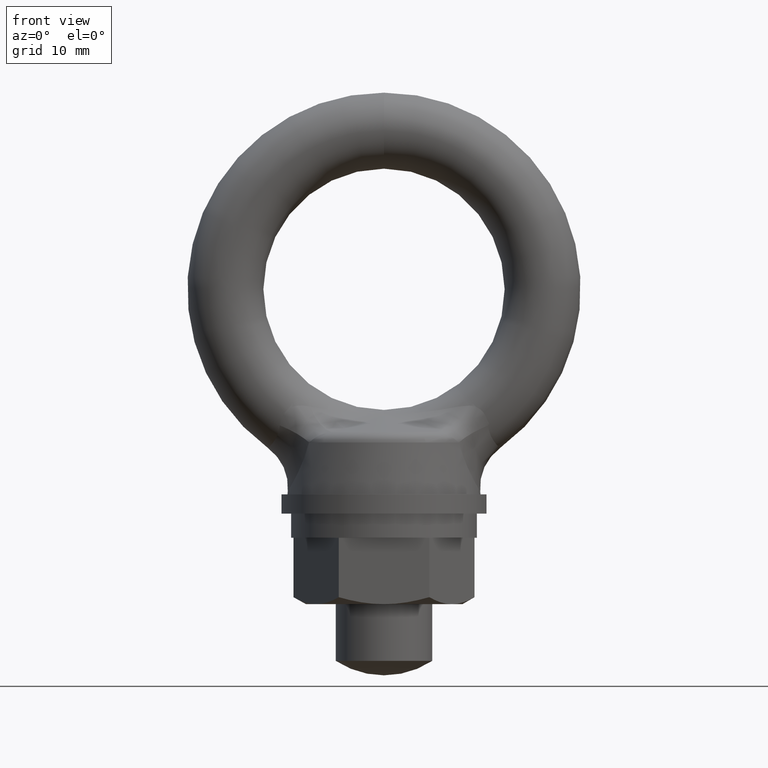
[diagram: clean part render]
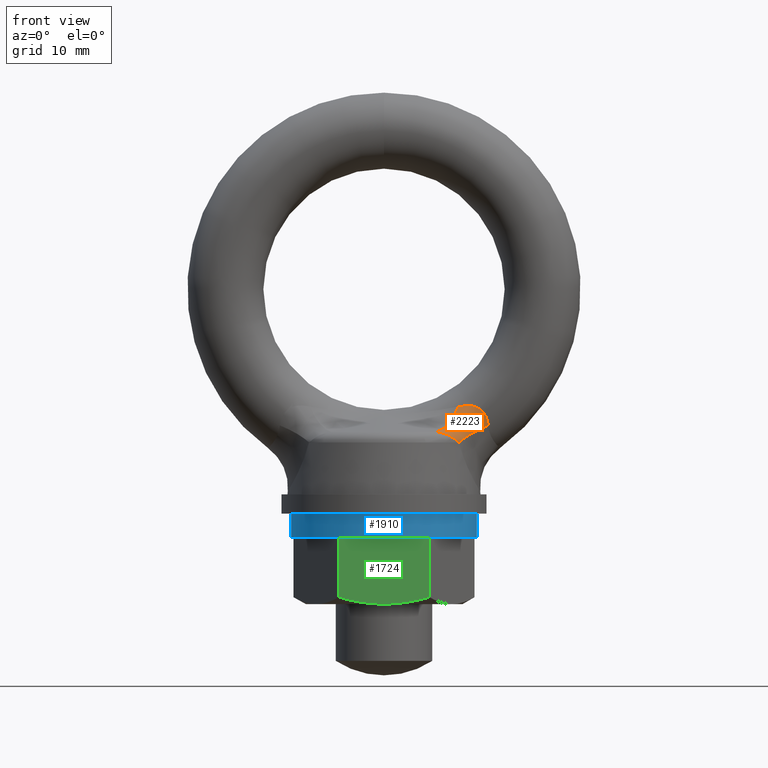
[diagram: same view with three faces highlighted in distinct colors, each labeled with its STEP entity id]
A machine part, front view with three faces highlighted in distinct colors.
Their STEP definitions:

[orange] entity #2223 — the highlighted face is a freeform B-spline surface patch.
#754 = CARTESIAN_POINT ( 'NONE',  ( 6.624465981007513300, -3.752363872475935800, -11.60461736599322100 ) ) ;
#755 = CARTESIAN_POINT ( 'NONE',  ( 6.850028407756562700, -3.604115059520046000, -11.43183169920158600 ) ) ;
#756 = CARTESIAN_POINT ( 'NONE',  ( 7.075590834505613100, -3.455866246564155600, -11.25904603240995000 ) ) ;
#757 = CARTESIAN_POINT ( 'NONE',  ( 7.316367057932363400, -3.341930627019032800, -11.07667421960101000 ) ) ;
#758 = CARTESIAN_POINT ( 'NONE',  ( 7.565463236599588200, -3.265567782564192900, -10.88993207257333800 ) ) ;
#759 = CARTESIAN_POINT ( 'NONE',  ( 7.814559415266814700, -3.189204938109352600, -10.70318992554566700 ) ) ;
#760 = CARTESIAN_POINT ( 'NONE',  ( 8.071947939920487900, -3.150423317274584400, -10.51209808149706500 ) ) ;
#761 = CARTESIAN_POINT ( 'NONE',  ( 8.330258053306016200, -3.150332459890817100, -10.32211941468063200 ) ) ;
#762 = CARTESIAN_POINT ( 'NONE',  ( 5.655982810312938400, -4.902921303073130200, -12.27286701834841800 ) ) ;
#763 = CARTESIAN_POINT ( 'NONE',  ( 5.799578757572135100, -4.634241746520705100, -12.16032117386944100 ) ) ;
#764 = DIRECTION ( 'NONE',  ( -0.9390797269214585800, 0.0000000000000000000, -0.3436993838881861100 ) ) ;
#765 = DIRECTION ( 'NONE',  ( 0.3252997756408585500, 0.3228035637214405900, -0.8888070179835132500 ) ) ;
#766 = CARTESIAN_POINT ( 'NONE',  ( 9.456419288156169500, -6.733135936884200300, -12.35134293307926100 ) ) ;
#767 = AXIS2_PLACEMENT_3D ( 'NONE', #766, #765, #764 ) ;
#768 = CIRCLE ( 'NONE', #767, 4.000000000000001800 ) ;
#769 = FACE_OUTER_BOUND ( 'NONE', #2220, .T. ) ;
#806 = CARTESIAN_POINT ( 'NONE',  ( 7.204398219756059000, -3.031339966494930300, -9.957411636842762100 ) ) ;
#807 = CARTESIAN_POINT ( 'NONE',  ( 7.405036247353464800, -3.000294370184554800, -9.681395243771278900 ) ) ;
#808 = CARTESIAN_POINT ( 'NONE',  ( 4.998548070981501100, -5.162955888432502900, -11.95721630242412000 ) ) ;
#809 = CARTESIAN_POINT ( 'NONE',  ( 5.157009970763178700, -4.867258216112873000, -11.88842652932523700 ) ) ;
#810 = CARTESIAN_POINT ( 'NONE',  ( 5.332633256828491300, -4.589326844221018200, -11.78294440711509900 ) ) ;
#811 = CARTESIAN_POINT ( 'NONE',  ( 5.519682183612121500, -4.338238951267684700, -11.64421480102921600 ) ) ;
#812 = CARTESIAN_POINT ( 'NONE',  ( 5.706731110395751600, -4.087151058314351100, -11.50548519494333500 ) ) ;
#813 = CARTESIAN_POINT ( 'NONE',  ( 5.905178632804928700, -3.862942950571206500, -11.33352816337640500 ) ) ;
#814 = CARTESIAN_POINT ( 'NONE',  ( 6.108543672686003800, -3.672937307980696600, -11.13395969529256600 ) ) ;
#815 = CARTESIAN_POINT ( 'NONE',  ( 6.311908712567079900, -3.482931665390186700, -10.93439122720872600 ) ) ;
#816 = CARTESIAN_POINT ( 'NONE',  ( 6.520161866462100200, -3.327155962880470800, -10.70724017858661100 ) ) ;
#817 = CARTESIAN_POINT ( 'NONE',  ( 6.726501895341865400, -3.210697980358865300, -10.45992523797714900 ) ) ;
#818 = CARTESIAN_POINT ( 'NONE',  ( 6.932841924221629700, -3.094239997837260300, -10.21261029736768600 ) ) ;
#819 = CARTESIAN_POINT ( 'NONE',  ( 7.137238995169668400, -3.017116576397377500, -9.945167225295177700 ) ) ;
#820 = CARTESIAN_POINT ( 'NONE',  ( 7.333017877920215500, -2.981846806581769400, -9.666330716938796600 ) ) ;
#821 = CARTESIAN_POINT ( 'NONE',  ( 4.955609647913139100, -5.173782885969664800, -11.94330041510120000 ) ) ;
#822 = CARTESIAN_POINT ( 'NONE',  ( 5.114219571410690600, -4.877956180036631100, -11.87721068945233900 ) ) ;
#823 = CARTESIAN_POINT ( 'NONE',  ( 5.289198206419209600, -4.599252052984997600, -11.77388903182385400 ) ) ;
#824 = CARTESIAN_POINT ( 'NONE',  ( 5.474842091869134300, -4.346754917540291500, -11.63670323081404200 ) ) ;
#825 = CARTESIAN_POINT ( 'NONE',  ( 5.660485977319059000, -4.094257782095585400, -11.49951742980422900 ) ) ;
#826 = CARTESIAN_POINT ( 'NONE',  ( 5.856768377025486100, -3.868004002558650200, -11.32848724272927000 ) ) ;
#827 = CARTESIAN_POINT ( 'NONE',  ( 6.057291429756314300, -3.675368362847356400, -11.12918743026583500 ) ) ;
#828 = CARTESIAN_POINT ( 'NONE',  ( 6.257814482487141600, -3.482732723136062500, -10.92988761780240000 ) ) ;
#829 = CARTESIAN_POINT ( 'NONE',  ( 6.462549309179634000, -3.323742966378438400, -10.70234688284379500 ) ) ;
#830 = CARTESIAN_POINT ( 'NONE',  ( 6.664822540176010600, -3.203581393191258900, -10.45398195785860400 ) ) ;
#831 = CARTESIAN_POINT ( 'NONE',  ( 6.867095771172387200, -3.083419820004079000, -10.20561703287341400 ) ) ;
#832 = CARTESIAN_POINT ( 'NONE',  ( 7.066878275351571800, -3.002103735896926900, -9.936463687047043100 ) ) ;
#833 = CARTESIAN_POINT ( 'NONE',  ( 7.257658104926845200, -2.962283653716770300, -9.655295023619155300 ) ) ;
#834 = CARTESIAN_POINT ( 'NONE',  ( 4.869732801776416800, -5.195436881043987000, -11.91546864045535900 ) ) ;
#835 = CARTESIAN_POINT ( 'NONE',  ( 5.028638772705713600, -4.899352107884143800, -11.85477900970653700 ) ) ;
#836 = CARTESIAN_POINT ( 'NONE',  ( 5.202328105600646100, -4.619102470512953800, -11.75577828124136400 ) ) ;
#837 = CARTESIAN_POINT ( 'NONE',  ( 5.385161908383159900, -4.363786850085504400, -11.62168009038369300 ) ) ;
#838 = CARTESIAN_POINT ( 'NONE',  ( 5.567995711165673700, -4.108471229658054100, -11.48758189952602200 ) ) ;
#839 = CARTESIAN_POINT ( 'NONE',  ( 5.759947865466602800, -3.878126106533538000, -11.31840540143500100 ) ) ;
#840 = CARTESIAN_POINT ( 'NONE',  ( 5.358841688301176900, -4.138447832193513400, -11.47743259672123800 ) ) ;
#841 = CARTESIAN_POINT ( 'NONE',  ( 5.538782123605322700, -3.899879913288550900, -11.31447956961868500 ) ) ;
#842 = CARTESIAN_POINT ( 'NONE',  ( 5.719123986665049800, -3.690730034607336000, -11.12019082425531200 ) ) ;
#843 = CARTESIAN_POINT ( 'NONE',  ( 5.899465849724776100, -3.481580155926120600, -10.92590207889193900 ) ) ;
#844 = CARTESIAN_POINT ( 'NONE',  ( 6.080184490503187400, -3.301876905130657600, -10.70030417163497600 ) ) ;
#845 = CARTESIAN_POINT ( 'NONE',  ( 6.255540070906475200, -3.157327870326158700, -10.45056235924144200 ) ) ;
#846 = CARTESIAN_POINT ( 'NONE',  ( 6.430895651309763900, -3.012778835521659400, -10.20082054684790800 ) ) ;
#847 = CARTESIAN_POINT ( 'NONE',  ( 6.600864202851334500, -2.903403774400436200, -9.926968965290369000 ) ) ;
#848 = CARTESIAN_POINT ( 'NONE',  ( 6.760047323005108100, -2.832676568459341100, -9.637705465178502400 ) ) ;
#849 = CARTESIAN_POINT ( 'NONE',  ( 6.125361473815208200, -3.837976307579706900, -11.37471549314044100 ) ) ;
#850 = CARTESIAN_POINT ( 'NONE',  ( 6.339870360658360400, -3.660426450901915100, -11.17707983443512800 ) ) ;
#851 = CARTESIAN_POINT ( 'NONE',  ( 6.554379247501511700, -3.482876594224123800, -10.97944417572981600 ) ) ;
#852 = CARTESIAN_POINT ( 'NONE',  ( 6.777164966763140600, -3.341541102563229800, -10.75830026909931900 ) ) ;
#853 = CARTESIAN_POINT ( 'NONE',  ( 7.000992843494215000, -3.241009661220058300, -10.52082947377408600 ) ) ;
#854 = CARTESIAN_POINT ( 'NONE',  ( 7.224820720225288500, -3.140478219876886800, -10.28335867844885400 ) ) ;
#855 = CARTESIAN_POINT ( 'NONE',  ( 7.449658760866690000, -3.080765198637089400, -10.02959493808255000 ) ) ;
#856 = CARTESIAN_POINT ( 'NONE',  ( 7.668205644015911200, -3.063809699792889000, -9.767778898356981500 ) ) ;
#857 = CARTESIAN_POINT ( 'NONE',  ( 5.165200978152407500, -5.115552554546954200, -12.01996472900264300 ) ) ;
#858 = CARTESIAN_POINT ( 'NONE',  ( 5.321440678384769600, -4.821979046278992900, -11.94001308698799100 ) ) ;
#859 = CARTESIAN_POINT ( 'NONE',  ( 5.497787286596619100, -4.548356336410940900, -11.82623330867404300 ) ) ;
#860 = CARTESIAN_POINT ( 'NONE',  ( 5.688495653842587700, -4.303598585733804600, -11.68233240891144400 ) ) ;
#861 = CARTESIAN_POINT ( 'NONE',  ( 5.879204021088556300, -4.058840835056669100, -11.53843150914884700 ) ) ;
#862 = CARTESIAN_POINT ( 'NONE',  ( 6.204904117960464500, -3.668041700831574200, -11.14839291386465800 ) ) ;
#863 = CARTESIAN_POINT ( 'NONE',  ( 6.413200139430291100, -3.483143833709272800, -10.94912098122977000 ) ) ;
#864 = CARTESIAN_POINT ( 'NONE',  ( 6.627758908753202500, -3.333425251716596500, -10.72379626564243400 ) ) ;
#865 = CARTESIAN_POINT ( 'NONE',  ( 6.841572325456430900, -3.223776190142251300, -10.47977851404199300 ) ) ;
#866 = CARTESIAN_POINT ( 'NONE',  ( 7.055385742159659300, -3.114127128567906000, -10.23576076244155300 ) ) ;
#867 = CARTESIAN_POINT ( 'NONE',  ( 7.268422884079559100, -3.044563445098833900, -9.973085265208579700 ) ) ;
#868 = CARTESIAN_POINT ( 'NONE',  ( 7.473725351427964900, -3.017357287755575400, -9.700331752186569300 ) ) ;
#869 = CARTESIAN_POINT ( 'NONE',  ( 5.040891874509992700, -5.151708974091416600, -11.97207298338659200 ) ) ;
#870 = CARTESIAN_POINT ( 'NONE',  ( 5.198970153241965000, -4.856315663507254000, -11.90052002858140400 ) ) ;
#871 = CARTESIAN_POINT ( 'NONE',  ( 5.374983301762362900, -4.579290858332626600, -11.79290714946718800 ) ) ;
#872 = CARTESIAN_POINT ( 'NONE',  ( 5.563178653510588500, -4.329688577946770400, -11.65275151536578900 ) ) ;
#873 = CARTESIAN_POINT ( 'NONE',  ( 5.751374005258814000, -4.080086297560913300, -11.51259588126439000 ) ) ;
#874 = CARTESIAN_POINT ( 'NONE',  ( 5.951724308742029700, -3.857942684934968300, -11.33991778742295900 ) ) ;
#875 = CARTESIAN_POINT ( 'NONE',  ( 6.157681452812904700, -3.670518049028028700, -11.14036090705760200 ) ) ;
#876 = CARTESIAN_POINT ( 'NONE',  ( 6.363638596883778800, -3.483093413121089600, -10.94080402669224500 ) ) ;
#877 = CARTESIAN_POINT ( 'NONE',  ( 6.575172757823893700, -3.330414893199675800, -10.71439725626597000 ) ) ;
#878 = CARTESIAN_POINT ( 'NONE',  ( 6.785370273034462100, -3.217472443079660000, -10.46854025865467200 ) ) ;
#879 = CARTESIAN_POINT ( 'NONE',  ( 6.995567788245030400, -3.104529992959644200, -10.22268326104337400 ) ) ;
#880 = CARTESIAN_POINT ( 'NONE',  ( 5.293319777635262300, -3.923561784140805000, -11.32196762688101200 ) ) ;
#881 = CARTESIAN_POINT ( 'NONE',  ( 5.456965508591952000, -3.702527886602736500, -11.13447296885970400 ) ) ;
#882 = CARTESIAN_POINT ( 'NONE',  ( 5.620611239548641600, -3.481493989064667400, -10.94697831083839600 ) ) ;
#883 = CARTESIAN_POINT ( 'NONE',  ( 5.782409418746744300, -3.286596163816140500, -10.72699870403193500 ) ) ;
#884 = CARTESIAN_POINT ( 'NONE',  ( 5.937378511518119200, -3.123846444854364800, -10.48131231831018300 ) ) ;
#885 = CARTESIAN_POINT ( 'NONE',  ( 6.092347604289495100, -2.961096725892589100, -10.23562593258843200 ) ) ;
#886 = CARTESIAN_POINT ( 'NONE',  ( 6.240467725390680600, -2.830516092761823800, -9.964264354189889900 ) ) ;
#887 = CARTESIAN_POINT ( 'NONE',  ( 6.377179456850029700, -2.736135694756229400, -9.675590147260678000 ) ) ;
#888 = CARTESIAN_POINT ( 'NONE',  ( 5.748087650809094600, -3.107128881078032200, -10.51453431734168300 ) ) ;
#889 = CARTESIAN_POINT ( 'NONE',  ( 5.891708131773502700, -2.934530078276012400, -10.27313614036470900 ) ) ;
#890 = CARTESIAN_POINT ( 'NONE',  ( 6.028013031313895100, -2.792548082051479900, -10.00552260398186500 ) ) ;
#891 = CARTESIAN_POINT ( 'NONE',  ( 6.152873488992953300, -2.685483719806822700, -9.719800085488369500 ) ) ;
#892 = CARTESIAN_POINT ( 'NONE',  ( 6.108660724279736200, -4.550018531910130700, -12.60205899224966000 ) ) ;
#893 = CARTESIAN_POINT ( 'NONE',  ( 5.101589738699382300, -5.137912545774836900, -11.98862065408465000 ) ) ;
#894 = CARTESIAN_POINT ( 'NONE',  ( 5.271149626895899900, -5.086419492993115900, -12.06098680549957100 ) ) ;
#895 = CARTESIAN_POINT ( 'NONE',  ( 5.584473315773737000, -4.943309559237218500, -12.22930568065968000 ) ) ;
#896 = CARTESIAN_POINT ( 'NONE',  ( 5.730020183650999000, -4.668960853296282700, -12.12089160500870100 ) ) ;
#897 = CARTESIAN_POINT ( 'NONE',  ( 5.900916107219056400, -4.417076854103284800, -11.98974781401026300 ) ) ;
#898 = CARTESIAN_POINT ( 'NONE',  ( 6.092008159097540300, -4.195251995136497500, -11.83982918199509100 ) ) ;
#899 = CARTESIAN_POINT ( 'NONE',  ( 6.283100210976023400, -3.973427136169709800, -11.68991054997991700 ) ) ;
#900 = CARTESIAN_POINT ( 'NONE',  ( 6.494364871604802600, -3.781688714104367600, -11.52123552980603800 ) ) ;
#901 = CARTESIAN_POINT ( 'NONE',  ( 6.719431694178823000, -3.625817627128619300, -11.33888997047053400 ) ) ;
#902 = CARTESIAN_POINT ( 'NONE',  ( 6.944498516752844400, -3.469946540152871100, -11.15654441113502800 ) ) ;
#903 = CARTESIAN_POINT ( 'NONE',  ( 7.183339797687208000, -3.349961968104670200, -10.96055075087944400 ) ) ;
#904 = CARTESIAN_POINT ( 'NONE',  ( 7.428753256471914300, -3.269481328214704200, -10.75681792308480700 ) ) ;
#905 = CARTESIAN_POINT ( 'NONE',  ( 7.674166715256620600, -3.189000688324737700, -10.55308509529017000 ) ) ;
#906 = CARTESIAN_POINT ( 'NONE',  ( 7.926122141368863600, -3.148033882707137900, -10.34163816545259200 ) ) ;
#907 = CARTESIAN_POINT ( 'NONE',  ( 8.177021486127467000, -3.147815874627812000, -10.12885147123172700 ) ) ;
#908 = CARTESIAN_POINT ( 'NONE',  ( 5.547925973596487200, -4.961878202509980800, -12.20836307296324300 ) ) ;
#909 = CARTESIAN_POINT ( 'NONE',  ( 5.694493526032338200, -4.685035224309397800, -12.10225251880596500 ) ) ;
#910 = CARTESIAN_POINT ( 'NONE',  ( 5.866112410113149000, -4.430622976769524400, -11.97228763147072600 ) ) ;
#911 = CARTESIAN_POINT ( 'NONE',  ( 6.057551201872100500, -4.206396657323095300, -11.82243010450945100 ) ) ;
#912 = CARTESIAN_POINT ( 'NONE',  ( 6.248989993631051100, -3.982170337876667100, -11.67257257754817300 ) ) ;
#913 = CARTESIAN_POINT ( 'NONE',  ( 6.460224605944219400, -3.788158159024890700, -11.50284126626593600 ) ) ;
#914 = B_SPLINE_SURFACE_WITH_KNOTS ( 'NONE', 3, 3, ( 
 ( #891, #890, #889, #888, #935, #934, #933, #932, #931, #930, #929, #928, #927 ),
 ( #887, #886, #885, #884, #883, #882, #881, #880, #1108, #1107, #1106, #1105, #1104 ),
 ( #1103, #1102, #1101, #926, #925, #924, #923, #922, #921, #920, #919, #918, #917 ),
 ( #848, #847, #846, #845, #844, #843, #842, #841, #840, #989, #988, #987, #986 ),
 ( #985, #984, #983, #982, #981, #950, #949, #948, #947, #946, #945, #944, #943 ),
 ( #942, #941, #940, #939, #938, #937, #936, #839, #838, #837, #836, #835, #834 ),
 ( #833, #832, #831, #830, #829, #828, #827, #826, #825, #824, #823, #822, #821 ),
 ( #820, #819, #818, #817, #816, #815, #814, #813, #812, #811, #810, #809, #808 ),
 ( #807, #806, #879, #878, #877, #876, #875, #874, #873, #872, #871, #870, #869 ),
 ( #868, #867, #866, #865, #864, #863, #862, #980, #979, #978, #977, #976, #975 ),
 ( #974, #973, #972, #971, #970, #969, #968, #967, #966, #965, #964, #963, #962 ),
 ( #961, #960, #959, #958, #957, #956, #955, #954, #861, #860, #859, #858, #857 ),
 ( #856, #855, #854, #853, #852, #851, #850, #849, #1038, #1037, #1036, #1035, #1034 ),
 ( #1033, #1032, #1031, #1030, #1029, #1028, #1027, #1026, #1025, #1024, #1023, #1022, #1021 ),
 ( #1079, #1078, #1077, #1076, #1075, #1074, #1073, #1072, #1071, #1070, #1069, #1068, #1067 ),
 ( #1066, #1065, #1064, #1063, #1062, #1061, #1060, #1059, #1058, #1057, #1056, #1055, #1054 ),
 ( #1053, #1052, #1051, #1050, #1049, #1048, #1047, #1046, #1045, #1044, #1043, #1042, #1041 ),
 ( #1040, #1039, #1100, #1099, #1098, #1097, #1096, #1095, #1094, #1093, #1092, #1091, #1090 ),
 ( #1089, #1088, #1087, #1086, #1085, #1084, #1083, #913, #912, #911, #910, #909, #908 ),
 ( #907, #906, #905, #904, #903, #902, #901, #900, #899, #898, #897, #896, #895 ),
 ( #1020, #1019, #1018, #1017, #1016, #1015, #1014, #1013, #1012, #1011, #1010, #1009, #1008 ),
 ( #1007, #1006, #1005, #1004, #1003, #1002, #1001, #1000, #999, #998, #997, #763, #762 ),
 ( #761, #760, #759, #758, #757, #756, #755, #754, #1209, #1173, #1179, #1217, #1356 ),
 ( #1180, #1156, #1155, #1216, #1355, #1354, #1329, #1328, #1327, #1326, #1325, #1324, #1178 ),
 ( #1177, #1176, #1175, #1174, #1172, #1171, #1170, #1169, #1168, #1167, #1215, #1214, #1213 ),
 ( #1212, #1211, #1210, #1364, #1363, #1362, #1361, #1360, #1359, #1358, #1357, #1116, #1115 ),
 ( #1114, #1113, #1112, #1111, #1110, #1166, #1165, #1164, #1163, #1162, #1161, #1160, #1159 ),
 ( #1158, #1157, #1323, #1322, #1321, #1320, #1319, #1318, #1317, #1316, #1315, #1314, #1313 ),
 ( #1312, #1311, #1310, #1309, #1308, #1307, #1306, #1305, #1304, #1303, #1302, #1238, #1237 ),
 ( #1236, #1235, #1234, #1233, #1232, #1231, #1230, #1229, #1228, #1227, #1226, #1225, #1224 ),
 ( #1223, #1222, #1221, #1220, #1219, #1218, #1148, #1147, #1146, #1145, #1144, #1143, #1142 ),
 ( #1141, #1140, #1139, #1138, #1137, #1136, #1135, #1134, #1133, #1132, #1131, #1301, #1300 ),
 ( #1299, #1298, #1297, #1296, #1295, #1294, #1293, #1292, #1291, #1290, #1289, #1288, #1287 ),
 ( #1286, #1285, #1284, #1256, #1255, #1254, #1253, #1252, #1251, #1250, #1249, #1248, #1247 ) ),
 .UNSPECIFIED., .F., .F., .F.,
 ( 4, 3, 3, 3, 3, 3, 3, 3, 3, 3, 3, 4 ),
 ( 4, 3, 3, 3, 4 ),
 ( -9.107298248878237200E-018, 0.0008284470799512451200, 0.001656894159902499300, 0.002071117699878126300, 0.002485341239853753500, 0.003313788319805007800, 0.003728011859780635000, 0.004142235399756262100, 0.004970682479707515600, 0.005384906019683142300, 0.005799129559658769900, 0.006627576639610024300 ),
 ( 0.0000000000000000000, 0.2500000000000000000, 0.5000000000000000000, 0.7500000000000000000, 1.000000000000000000 ),
 .UNSPECIFIED. ) ;
#916 = CARTESIAN_POINT ( 'NONE',  ( 5.730262366533233700, -4.865395672142509100, -12.31595642161145700 ) ) ;
#917 = CARTESIAN_POINT ( 'NONE',  ( 4.593284343112118900, -5.257640326672896200, -11.85023601579705500 ) ) ;
#918 = CARTESIAN_POINT ( 'NONE',  ( 4.747461347189744900, -4.963163342389465000, -11.80472359784629300 ) ) ;
#919 = CARTESIAN_POINT ( 'NONE',  ( 4.911454461195933000, -4.679992577612162000, -11.71946038242447800 ) ) ;
#920 = CARTESIAN_POINT ( 'NONE',  ( 5.080123822497013100, -4.417006159043611800, -11.59711756443701000 ) ) ;
#921 = CARTESIAN_POINT ( 'NONE',  ( 5.248793183798093200, -4.154019740475061600, -11.47477474644954000 ) ) ;
#922 = CARTESIAN_POINT ( 'NONE',  ( 5.422116356197314200, -3.911252688015609500, -11.31536859851062700 ) ) ;
#923 = CARTESIAN_POINT ( 'NONE',  ( 5.594662168860232000, -3.696317754191969800, -11.12389523537899000 ) ) ;
#924 = CARTESIAN_POINT ( 'NONE',  ( 5.767207981523150700, -3.481382820368331000, -10.93242187224735300 ) ) ;
#925 = CARTESIAN_POINT ( 'NONE',  ( 5.938953491587961200, -3.294308639516160500, -10.70890677428156600 ) ) ;
#926 = CARTESIAN_POINT ( 'NONE',  ( 6.104517955721261700, -3.140963228035947600, -10.46035654703938400 ) ) ;
#927 = CARTESIAN_POINT ( 'NONE',  ( 4.383375090677890100, -5.307113808483035400, -11.82035886595320500 ) ) ;
#928 = CARTESIAN_POINT ( 'NONE',  ( 4.528988815909614600, -5.013452599682123500, -11.78500343357469200 ) ) ;
#929 = CARTESIAN_POINT ( 'NONE',  ( 4.681263281698470300, -4.727884987589047400, -11.71004648767819300 ) ) ;
#930 = CARTESIAN_POINT ( 'NONE',  ( 4.835585887767211800, -4.459061202824472900, -11.59775857590695300 ) ) ;
#931 = CARTESIAN_POINT ( 'NONE',  ( 4.989908493835954100, -4.190237418059897600, -11.48547066413571500 ) ) ;
#932 = CARTESIAN_POINT ( 'NONE',  ( 5.146260068067881800, -3.938190857681485900, -11.33586573646766700 ) ) ;
#933 = CARTESIAN_POINT ( 'NONE',  ( 5.299904509036447400, -3.710556354149536800, -11.15347552924654200 ) ) ;
#934 = CARTESIAN_POINT ( 'NONE',  ( 5.453548950005013800, -3.482921850617588100, -10.97108532202541700 ) ) ;
#935 = CARTESIAN_POINT ( 'NONE',  ( 5.604467169844687300, -3.279727683880052400, -10.75593249431865700 ) ) ;
#936 = CARTESIAN_POINT ( 'NONE',  ( 5.954786943896933400, -3.680230472580675800, -11.11964290021237500 ) ) ;
#937 = CARTESIAN_POINT ( 'NONE',  ( 6.149626022327265000, -3.482334838627813200, -10.92088039898974600 ) ) ;
#938 = CARTESIAN_POINT ( 'NONE',  ( 6.347324194614701700, -3.316916973374374900, -10.69256029135815900 ) ) ;
#939 = CARTESIAN_POINT ( 'NONE',  ( 6.541463829844302000, -3.189348218856045600, -10.44209539762151600 ) ) ;
#940 = CARTESIAN_POINT ( 'NONE',  ( 6.735603465073902300, -3.061779464337716300, -10.19163050388487200 ) ) ;
#941 = CARTESIAN_POINT ( 'NONE',  ( 6.926156835715378400, -2.972078054896025700, -9.919056610550777400 ) ) ;
#942 = CARTESIAN_POINT ( 'NONE',  ( 7.106938558940104400, -2.923157347986772100, -9.633223636979870700 ) ) ;
#943 = CARTESIAN_POINT ( 'NONE',  ( 4.781301451638187300, -5.215429990287141500, -11.89128001039838100 ) ) ;
#944 = CARTESIAN_POINT ( 'NONE',  ( 4.939559328815418500, -4.919795371727401400, -11.83573479745715300 ) ) ;
#945 = CARTESIAN_POINT ( 'NONE',  ( 5.110933370676789000, -4.638538124529523200, -11.74117172174513400 ) ) ;
#946 = CARTESIAN_POINT ( 'NONE',  ( 5.289911781740524800, -4.380707024220745500, -11.61063108436903400 ) ) ;
#947 = CARTESIAN_POINT ( 'NONE',  ( 5.468890192804260600, -4.122875923911967000, -11.48009044699293400 ) ) ;
#948 = CARTESIAN_POINT ( 'NONE',  ( 5.655447891013332100, -3.888507138561492700, -11.31359054072674100 ) ) ;
#949 = CARTESIAN_POINT ( 'NONE',  ( 5.843585804469866800, -3.685142315022701600, -11.11648641313163400 ) ) ;
#950 = CARTESIAN_POINT ( 'NONE',  ( 6.031723717926401400, -3.481777491483910600, -10.91938228553652500 ) ) ;
#952 = CARTESIAN_POINT ( 'NONE',  ( 4.383375090677879400, -5.307113808483039800, -11.82035886595320000 ) ) ;
#953 = CARTESIAN_POINT ( 'NONE',  ( 4.567038090364850900, -5.261714943729949700, -11.84203312021343600 ) ) ;
#954 = CARTESIAN_POINT ( 'NONE',  ( 6.084246709410757100, -3.842983255585408200, -11.36443019211847300 ) ) ;
#955 = CARTESIAN_POINT ( 'NONE',  ( 6.296943544138209800, -3.663058013981105500, -11.16599722909136700 ) ) ;
#956 = CARTESIAN_POINT ( 'NONE',  ( 6.509640378865661600, -3.483132772376802900, -10.96756426606426300 ) ) ;
#957 = CARTESIAN_POINT ( 'NONE',  ( 6.729960757292014200, -3.339165752539076300, -10.74472820514670700 ) ) ;
#958 = CARTESIAN_POINT ( 'NONE',  ( 6.950726637943359000, -3.235846956205523700, -10.50474860868071400 ) ) ;
#959 = CARTESIAN_POINT ( 'NONE',  ( 7.171492518594703800, -3.132528159871971000, -10.26476901221472300 ) ) ;
#960 = CARTESIAN_POINT ( 'NONE',  ( 7.392672136692293200, -3.069872449072621000, -10.00768040408622300 ) ) ;
#961 = CARTESIAN_POINT ( 'NONE',  ( 7.607059332281933100, -3.049920764739426200, -9.741858083200924100 ) ) ;
#962 = CARTESIAN_POINT ( 'NONE',  ( 5.124439106540892300, -5.127943793930183100, -12.00353262660682500 ) ) ;
#963 = CARTESIAN_POINT ( 'NONE',  ( 5.281402506244030600, -4.833615603749905200, -11.92638346227702300 ) ) ;
#964 = CARTESIAN_POINT ( 'NONE',  ( 5.457777475858415900, -4.558751035627655500, -11.81461056061568700 ) ) ;
#965 = CARTESIAN_POINT ( 'NONE',  ( 5.647806682399582300, -4.312322348905505400, -11.67186251671519100 ) ) ;
#966 = CARTESIAN_POINT ( 'NONE',  ( 5.837835888940748700, -4.065893662183356100, -11.52911447281469600 ) ) ;
#967 = CARTESIAN_POINT ( 'NONE',  ( 6.041491884239245100, -3.847936450972782900, -11.35541190557613200 ) ) ;
#968 = CARTESIAN_POINT ( 'NONE',  ( 6.252126783108024300, -3.665565352635119300, -11.15642492067171400 ) ) ;
#969 = CARTESIAN_POINT ( 'NONE',  ( 6.462761681976803500, -3.483194254297456100, -10.95743793576729700 ) ) ;
#970 = CARTESIAN_POINT ( 'NONE',  ( 6.680345059682510500, -3.336435610233516900, -10.73319527501889700 ) ) ;
#971 = CARTESIAN_POINT ( 'NONE',  ( 6.897774377878399800, -3.230079937204842100, -10.49101676942931500 ) ) ;
#972 = CARTESIAN_POINT ( 'NONE',  ( 7.115203696074288200, -3.123724264176167300, -10.24883826383973200 ) ) ;
#973 = CARTESIAN_POINT ( 'NONE',  ( 7.332447548403059100, -3.057786923702737500, -9.988758893574399200 ) ) ;
#974 = CARTESIAN_POINT ( 'NONE',  ( 7.542414455502465000, -3.034420205326596100, -9.719268260601861400 ) ) ;
#975 = CARTESIAN_POINT ( 'NONE',  ( 5.082665490525442000, -5.139826384010800300, -11.98780280499671000 ) ) ;
#976 = CARTESIAN_POINT ( 'NONE',  ( 5.240186329742997800, -4.844965633628580000, -11.91345174542921400 ) ) ;
#977 = CARTESIAN_POINT ( 'NONE',  ( 5.416380388810389400, -4.569020946980140600, -11.80375885504143900 ) ) ;
#978 = CARTESIAN_POINT ( 'NONE',  ( 5.605492667955085800, -4.321005463426137900, -11.66230701604049000 ) ) ;
#979 = CARTESIAN_POINT ( 'NONE',  ( 5.794604947099781400, -4.072989979872135200, -11.52085517703954300 ) ) ;
#980 = CARTESIAN_POINT ( 'NONE',  ( 5.996608096490637000, -3.852939567953875600, -11.34766484649954400 ) ) ;
#981 = CARTESIAN_POINT ( 'NONE',  ( 6.221415489418413700, -3.309445170745154200, -10.69170156898838500 ) ) ;
#982 = CARTESIAN_POINT ( 'NONE',  ( 6.406562186091688800, -3.173692512616369300, -10.44076817144350100 ) ) ;
#983 = CARTESIAN_POINT ( 'NONE',  ( 6.591708882764964800, -3.037939854487584000, -10.18983477389861700 ) ) ;
#984 = CARTESIAN_POINT ( 'NONE',  ( 6.772284574000982700, -2.938785928565367000, -9.915683882665351900 ) ) ;
#985 = CARTESIAN_POINT ( 'NONE',  ( 6.942484272159092900, -2.879424826490106300, -9.627135138261731800 ) ) ;
#986 = CARTESIAN_POINT ( 'NONE',  ( 4.687292897375153100, -5.236535158480018400, -11.87075801309771700 ) ) ;
#987 = CARTESIAN_POINT ( 'NONE',  ( 4.843510338002581700, -4.941479357058433700, -11.82022919765172400 ) ) ;
#988 = CARTESIAN_POINT ( 'NONE',  ( 5.011193915936361000, -4.659265351070843900, -11.73031605208480600 ) ) ;
#989 = CARTESIAN_POINT ( 'NONE',  ( 5.185017802118768900, -4.398856591632178200, -11.60387432440302100 ) ) ;
#995 = CARTESIAN_POINT ( 'NONE',  ( 5.584568233622223800, -4.950264748366878500, -12.22437384947507700 ) ) ;
#996 = CARTESIAN_POINT ( 'NONE',  ( 5.991391992773712300, -4.665719247772408100, -12.50420174390208300 ) ) ;
#997 = CARTESIAN_POINT ( 'NONE',  ( 5.968924555292761400, -4.387906596481860400, -12.02734151740319000 ) ) ;
#998 = CARTESIAN_POINT ( 'NONE',  ( 6.159040894706190100, -4.171158895235289600, -11.87783807670591200 ) ) ;
#999 = CARTESIAN_POINT ( 'NONE',  ( 6.349157234119619600, -3.954411193988719700, -11.72833463600863100 ) ) ;
#1000 = CARTESIAN_POINT ( 'NONE',  ( 6.560021871083366200, -3.767276301620595500, -11.56232490340027800 ) ) ;
#1001 = CARTESIAN_POINT ( 'NONE',  ( 6.785434709994468100, -3.615256583250259200, -11.38469009665170600 ) ) ;
#1002 = CARTESIAN_POINT ( 'NONE',  ( 7.010847548905569000, -3.463236864879922500, -11.20705528990313700 ) ) ;
#1003 = CARTESIAN_POINT ( 'NONE',  ( 7.250782215832559000, -3.346350107238838000, -11.01781619278267100 ) ) ;
#1004 = CARTESIAN_POINT ( 'NONE',  ( 7.498183863197235500, -3.268033155321642200, -10.82253704076790700 ) ) ;
#1005 = CARTESIAN_POINT ( 'NONE',  ( 7.745585510561911100, -3.189716203404446400, -10.62725788875314200 ) ) ;
#1006 = CARTESIAN_POINT ( 'NONE',  ( 8.000425191680825800, -3.149978220513162300, -10.42596153005005300 ) ) ;
#1007 = CARTESIAN_POINT ( 'NONE',  ( 8.255209803826485200, -3.149987630602334200, -10.22456672223913400 ) ) ;
#1008 = CARTESIAN_POINT ( 'NONE',  ( 5.620708715400769300, -4.923554178281108300, -12.25095482306834200 ) ) ;
#1009 = CARTESIAN_POINT ( 'NONE',  ( 5.765252487092303600, -4.651952700604252500, -12.14037004361753000 ) ) ;
#1010 = CARTESIAN_POINT ( 'NONE',  ( 5.935379567199121600, -4.402785311105076500, -12.00820774892209300 ) ) ;
#1011 = CARTESIAN_POINT ( 'NONE',  ( 6.126022123397657300, -4.183473681806978200, -11.85840540821919700 ) ) ;
#1012 = CARTESIAN_POINT ( 'NONE',  ( 6.316664679596192900, -3.964162052508879400, -11.70860306751630200 ) ) ;
#1013 = CARTESIAN_POINT ( 'NONE',  ( 6.527799816121293100, -3.774732516192925900, -11.54117867210380600 ) ) ;
#1014 = CARTESIAN_POINT ( 'NONE',  ( 6.753137861113420300, -3.620827345115365900, -11.36111929537676700 ) ) ;
#1015 = CARTESIAN_POINT ( 'NONE',  ( 6.978475906105547500, -3.466922174037806200, -11.18105991864973000 ) ) ;
#1016 = CARTESIAN_POINT ( 'NONE',  ( 7.217989794782656800, -3.348559847348741200, -10.98838717937350200 ) ) ;
#1017 = CARTESIAN_POINT ( 'NONE',  ( 7.464544176496057800, -3.269265841700367500, -10.78883952486519100 ) ) ;
#1018 = CARTESIAN_POINT ( 'NONE',  ( 7.711098558209459800, -3.189971836051993300, -10.58929187035687900 ) ) ;
#1019 = CARTESIAN_POINT ( 'NONE',  ( 7.964663817560993000, -3.149755672132450900, -10.38289325432654800 ) ) ;
#1020 = CARTESIAN_POINT ( 'NONE',  ( 8.217685679086720500, -3.149815215958092600, -10.17579037601838500 ) ) ;
#1021 = CARTESIAN_POINT ( 'NONE',  ( 5.285145805639482200, -5.076285857605576300, -12.07125363515131900 ) ) ;
#1022 = CARTESIAN_POINT ( 'NONE',  ( 5.438911713084330300, -4.785709912824498400, -11.98296641649145200 ) ) ;
#1023 = CARTESIAN_POINT ( 'NONE',  ( 5.614718999534036700, -4.516354418521952000, -11.86343147042374500 ) ) ;
#1024 = CARTESIAN_POINT ( 'NONE',  ( 5.806895600043148400, -4.276909100124198600, -11.71650620740888400 ) ) ;
#1025 = CARTESIAN_POINT ( 'NONE',  ( 5.999072200552260100, -4.037463781726444300, -11.56958094439402300 ) ) ;
#1026 = CARTESIAN_POINT ( 'NONE',  ( 6.207591002624110600, -3.827962411568304600, -11.39528609518437300 ) ) ;
#1027 = CARTESIAN_POINT ( 'NONE',  ( 6.425723993698659900, -3.655163324743535100, -11.19924504512264600 ) ) ;
#1028 = CARTESIAN_POINT ( 'NONE',  ( 6.643856984773210100, -3.482364237918765100, -11.00320399506092000 ) ) ;
#1029 = CARTESIAN_POINT ( 'NONE',  ( 6.871573385705393600, -3.346291802611537100, -10.78544439700454100 ) ) ;
#1030 = CARTESIAN_POINT ( 'NONE',  ( 7.101525254595927100, -3.251335071249127100, -10.55299120396082900 ) ) ;
#1031 = CARTESIAN_POINT ( 'NONE',  ( 7.331477123486459700, -3.156378339886717100, -10.32053801091711500 ) ) ;
#1032 = CARTESIAN_POINT ( 'NONE',  ( 7.563632009215482700, -3.102550697766025300, -10.07342400607520500 ) ) ;
#1033 = CARTESIAN_POINT ( 'NONE',  ( 7.790498267483866500, -3.091587569899813600, -9.819620528669100100 ) ) ;
#1034 = CARTESIAN_POINT ( 'NONE',  ( 5.205182587314765500, -5.102463655566494600, -12.03706103105220000 ) ) ;
#1035 = CARTESIAN_POINT ( 'NONE',  ( 5.360597689951289300, -4.809889335127494700, -11.95433086348914400 ) ) ;
#1036 = CARTESIAN_POINT ( 'NONE',  ( 5.536764524242425300, -4.537689030447945800, -11.83863269592394300 ) ) ;
#1037 = CARTESIAN_POINT ( 'NONE',  ( 5.727962302576107900, -4.294702090530603500, -11.69372367507725800 ) ) ;
#1038 = CARTESIAN_POINT ( 'NONE',  ( 5.919160080909790600, -4.051715150613260300, -11.54881465423057200 ) ) ;
#1039 = CARTESIAN_POINT ( 'NONE',  ( 7.844599507387374400, -3.141750456004800200, -10.26464995032359300 ) ) ;
#1040 = CARTESIAN_POINT ( 'NONE',  ( 8.090629783207168300, -3.140252137204866000, -10.04086805514282700 ) ) ;
#1041 = CARTESIAN_POINT ( 'NONE',  ( 5.474416693545649100, -4.997899235565246700, -12.16711389880419400 ) ) ;
#1042 = CARTESIAN_POINT ( 'NONE',  ( 5.623045817838122900, -4.716310334708467200, -12.06574774517914200 ) ) ;
#1043 = CARTESIAN_POINT ( 'NONE',  ( 5.796067326664633000, -4.457020326294563800, -11.93830209339392200 ) ) ;
#1044 = CARTESIAN_POINT ( 'NONE',  ( 5.988099098592247300, -4.228094532136487300, -11.78874185239676500 ) ) ;
#1045 = CARTESIAN_POINT ( 'NONE',  ( 6.180130870519861700, -3.999168737978410900, -11.63918161139960700 ) ) ;
#1046 = CARTESIAN_POINT ( 'NONE',  ( 6.391147737317473000, -3.800637157195274600, -11.46752638408424300 ) ) ;
#1047 = CARTESIAN_POINT ( 'NONE',  ( 6.614585381300977400, -3.638675050085670400, -11.27911577248340600 ) ) ;
#1048 = CARTESIAN_POINT ( 'NONE',  ( 6.838023025284480900, -3.476712942976067000, -11.09070516088257100 ) ) ;
#1049 = CARTESIAN_POINT ( 'NONE',  ( 7.073852159772086700, -3.351341532263858900, -10.88556385513913200 ) ) ;
#1050 = CARTESIAN_POINT ( 'NONE',  ( 7.314736342061776100, -3.266460292221296900, -10.67007260293602800 ) ) ;
#1051 = CARTESIAN_POINT ( 'NONE',  ( 7.555620524351465600, -3.181579052178734800, -10.45458135073292100 ) ) ;
#1052 = CARTESIAN_POINT ( 'NONE',  ( 7.801528178746286500, -3.137199103622561900, -10.22876838732959500 ) ) ;
#1053 = CARTESIAN_POINT ( 'NONE',  ( 8.044809060076250500, -3.134700572804896400, -9.999657052974184200 ) ) ;
#1054 = CARTESIAN_POINT ( 'NONE',  ( 5.436953775829712400, -5.014367671286681400, -12.14743913652447600 ) ) ;
#1055 = CARTESIAN_POINT ( 'NONE',  ( 5.586614896159763300, -4.730778303741630900, -12.04861141839334100 ) ) ;
#1056 = CARTESIAN_POINT ( 'NONE',  ( 5.760246802847499100, -4.469324697074222600, -11.92264082737456300 ) ) ;
#1057 = CARTESIAN_POINT ( 'NONE',  ( 5.952403098096944200, -4.238207995730018500, -11.77347874522954300 ) ) ;
#1058 = CARTESIAN_POINT ( 'NONE',  ( 6.144559393346388500, -4.007091294385814400, -11.62431666308452400 ) ) ;
#1059 = CARTESIAN_POINT ( 'NONE',  ( 6.355214464481804300, -3.806342304106153500, -11.45198297175383400 ) ) ;
#1060 = CARTESIAN_POINT ( 'NONE',  ( 6.577760589817532200, -3.642258017644621800, -11.26188334727098500 ) ) ;
#1061 = CARTESIAN_POINT ( 'NONE',  ( 6.800306715153259200, -3.478173731183090000, -11.07178372278813700 ) ) ;
#1062 = CARTESIAN_POINT ( 'NONE',  ( 7.034714231327308600, -3.350776019473537600, -10.86394350369347700 ) ) ;
#1063 = CARTESIAN_POINT ( 'NONE',  ( 7.273630361976134200, -3.264061029477106900, -10.64488211681809200 ) ) ;
#1064 = CARTESIAN_POINT ( 'NONE',  ( 7.512546492624959900, -3.177346039480676100, -10.42582072994270500 ) ) ;
#1065 = CARTESIAN_POINT ( 'NONE',  ( 7.755939392414665800, -3.131325329512004700, -10.19556737416483300 ) ) ;
#1066 = CARTESIAN_POINT ( 'NONE',  ( 7.996174436014810800, -3.127442453916168000, -9.961344520246608900 ) ) ;
#1067 = CARTESIAN_POINT ( 'NONE',  ( 5.362027940397839900, -5.047304542729549800, -12.10808961196503700 ) ) ;
#1068 = CARTESIAN_POINT ( 'NONE',  ( 5.513753052803044100, -4.759714241807957400, -12.01433876482173300 ) ) ;
#1069 = CARTESIAN_POINT ( 'NONE',  ( 5.688605755213232300, -4.493933438633538600, -11.89131829533584600 ) ) ;
#1070 = CARTESIAN_POINT ( 'NONE',  ( 5.881011097106337200, -4.258434922917079900, -11.74295253089510100 ) ) ;
#1071 = CARTESIAN_POINT ( 'NONE',  ( 6.073416438999442100, -4.022936407200620400, -11.59458676645435700 ) ) ;
#1072 = CARTESIAN_POINT ( 'NONE',  ( 6.283347918810466800, -3.817752597927912100, -11.42089614709301400 ) ) ;
#1073 = CARTESIAN_POINT ( 'NONE',  ( 6.504111006850642700, -3.649423952762524100, -11.22741849684614100 ) ) ;
#1074 = CARTESIAN_POINT ( 'NONE',  ( 6.724874094890817700, -3.481095307597135600, -11.03394084659926800 ) ) ;
#1075 = CARTESIAN_POINT ( 'NONE',  ( 6.956438374437754000, -3.349644993892895200, -10.82070280080216300 ) ) ;
#1076 = CARTESIAN_POINT ( 'NONE',  ( 7.191418401804850400, -3.259262503988727300, -10.59450114458222100 ) ) ;
#1077 = CARTESIAN_POINT ( 'NONE',  ( 7.426398429171946700, -3.168880014084559400, -10.36829948836227700 ) ) ;
#1078 = CARTESIAN_POINT ( 'NONE',  ( 7.664761819751426200, -3.119577781290891600, -10.12916534783531500 ) ) ;
#1079 = CARTESIAN_POINT ( 'NONE',  ( 7.898905187891932300, -3.112926216138710800, -9.884719454791458300 ) ) ;
#1082 = CARTESIAN_POINT ( 'NONE',  ( 4.749132277135748500, -5.224727527998754600, -11.87874773244102000 ) ) ;
#1083 = CARTESIAN_POINT ( 'NONE',  ( 6.684816016559500100, -3.630274155040490200, -11.31841005612713900 ) ) ;
#1084 = CARTESIAN_POINT ( 'NONE',  ( 6.909407427174779800, -3.472390151056089700, -11.13397884598834200 ) ) ;
#1085 = CARTESIAN_POINT ( 'NONE',  ( 7.147327377654632700, -3.350654187147860300, -10.93487094241218200 ) ) ;
#1086 = CARTESIAN_POINT ( 'NONE',  ( 7.391323401944455400, -3.268777116248006800, -10.72715571162447600 ) ) ;
#1087 = CARTESIAN_POINT ( 'NONE',  ( 7.635319426234278100, -3.186900045348153300, -10.51944048083677100 ) ) ;
#1088 = CARTESIAN_POINT ( 'NONE',  ( 7.885360824378119000, -3.144892169355969300, -10.30314405788809200 ) ) ;
#1089 = CARTESIAN_POINT ( 'NONE',  ( 8.133825634667317700, -3.144034005916339000, -10.08485976318727700 ) ) ;
#1090 = CARTESIAN_POINT ( 'NONE',  ( 5.511378631419237500, -4.980446845782743100, -12.18742046526680800 ) ) ;
#1091 = CARTESIAN_POINT ( 'NONE',  ( 5.658966868413678200, -4.701109595322513700, -12.08361343260323100 ) ) ;
#1092 = CARTESIAN_POINT ( 'NONE',  ( 5.831308713007241600, -4.444169099435764100, -11.95482744893118900 ) ) ;
#1093 = CARTESIAN_POINT ( 'NONE',  ( 6.023094244646660700, -4.217541319509694000, -11.80503102702380900 ) ) ;
#1094 = CARTESIAN_POINT ( 'NONE',  ( 6.214879776286078800, -3.990913539583623900, -11.65523460511643000 ) ) ;
#1095 = CARTESIAN_POINT ( 'NONE',  ( 6.426084340283636300, -3.794627603945413900, -11.48444700272583300 ) ) ;
#1096 = CARTESIAN_POINT ( 'NONE',  ( 6.650200338940176300, -3.634730682952361100, -11.29793014178374500 ) ) ;
#1097 = CARTESIAN_POINT ( 'NONE',  ( 6.874316337596716200, -3.474833761959308400, -11.11141328084165500 ) ) ;
#1098 = CARTESIAN_POINT ( 'NONE',  ( 7.111314957622056500, -3.351346406191050500, -10.90919113394492100 ) ) ;
#1099 = CARTESIAN_POINT ( 'NONE',  ( 7.353893547416995500, -3.268072904281309900, -10.69749350016414600 ) ) ;
#1100 = CARTESIAN_POINT ( 'NONE',  ( 7.596472137211934600, -3.184799402371568900, -10.48579586638337200 ) ) ;
#1101 = CARTESIAN_POINT ( 'NONE',  ( 6.270082419854563000, -2.987617816555735200, -10.21180631979720000 ) ) ;
#1102 = CARTESIAN_POINT ( 'NONE',  ( 6.429443831701686200, -2.868021620235505300, -9.938254047915387800 ) ) ;
#1103 = CARTESIAN_POINT ( 'NONE',  ( 6.577610373851123300, -2.785928310428576400, -9.648275792095271100 ) ) ;
#1104 = CARTESIAN_POINT ( 'NONE',  ( 4.493800017645890300, -5.279818347049207700, -11.83339022201216300 ) ) ;
#1105 = CARTESIAN_POINT ( 'NONE',  ( 4.644528226888853700, -4.986041635910636300, -11.79276088568725600 ) ) ;
#1106 = CARTESIAN_POINT ( 'NONE',  ( 4.803441311336917400, -4.701960309221682600, -11.71235742735026800 ) ) ;
#1107 = CARTESIAN_POINT ( 'NONE',  ( 4.965644406800431700, -4.436331800136867000, -11.59465533330892100 ) ) ;
#1108 = CARTESIAN_POINT ( 'NONE',  ( 5.127847502263946000, -4.170703291052051400, -11.47695323926757500 ) ) ;
#1109 = CARTESIAN_POINT ( 'NONE',  ( 6.210392761138069600, -4.421908272886815500, -12.69996661424272100 ) ) ;
#1110 = CARTESIAN_POINT ( 'NONE',  ( 7.479985981411807000, -3.309834993369440000, -11.28789303323797800 ) ) ;
#1111 = CARTESIAN_POINT ( 'NONE',  ( 7.728372546843064400, -3.235595046020069100, -11.12829241538074300 ) ) ;
#1112 = CARTESIAN_POINT ( 'NONE',  ( 7.976759112274323500, -3.161355098670698600, -10.96869179752350800 ) ) ;
#1113 = CARTESIAN_POINT ( 'NONE',  ( 8.235142404949002100, -3.120558136430941600, -10.80910152536880100 ) ) ;
#1114 = CARTESIAN_POINT ( 'NONE',  ( 8.496841457052065400, -3.114259475554478100, -10.65364563878015700 ) ) ;
#1115 = CARTESIAN_POINT ( 'NONE',  ( 5.890693618171287200, -4.742795615839265000, -12.43156979918353500 ) ) ;
#1116 = CARTESIAN_POINT ( 'NONE',  ( 6.028521898021931100, -4.497121435703133900, -12.30876194417101200 ) ) ;
#1131 = CARTESIAN_POINT ( 'NONE',  ( 6.394596076326555700, -4.128756858697856900, -12.34460165487113200 ) ) ;
#1132 = CARTESIAN_POINT ( 'NONE',  ( 6.573043792663242800, -3.950365771764435200, -12.21109606102720800 ) ) ;
#1133 = CARTESIAN_POINT ( 'NONE',  ( 6.751491508999929900, -3.771974684831012900, -12.07759046718328100 ) ) ;
#1134 = CARTESIAN_POINT ( 'NONE',  ( 6.950536115632669300, -3.616193257433369700, -11.94142648831713900 ) ) ;
#1135 = CARTESIAN_POINT ( 'NONE',  ( 7.165652082366194400, -3.486560854075097200, -11.80569620803861900 ) ) ;
#1136 = CARTESIAN_POINT ( 'NONE',  ( 7.380768049099719600, -3.356928450716824700, -11.66996592776009800 ) ) ;
#1137 = CARTESIAN_POINT ( 'NONE',  ( 7.611940410898598400, -3.253454081228826800, -11.53467875377635800 ) ) ;
#1138 = CARTESIAN_POINT ( 'NONE',  ( 7.853913002855521500, -3.178490409171125900, -11.40290376374204800 ) ) ;
#1139 = CARTESIAN_POINT ( 'NONE',  ( 8.095885594812447300, -3.103526737113424500, -11.27112877370773700 ) ) ;
#1140 = CARTESIAN_POINT ( 'NONE',  ( 8.348641580828658700, -3.057078986650545900, -11.14287508244264700 ) ) ;
#1141 = CARTESIAN_POINT ( 'NONE',  ( 8.606433371820122200, -3.040206051214698700, -11.02104943493777600 ) ) ;
#1142 = CARTESIAN_POINT ( 'NONE',  ( 6.044075097756807400, -4.606670691030138300, -12.55168842157062400 ) ) ;
#1143 = CARTESIAN_POINT ( 'NONE',  ( 6.178823863711451200, -4.379873307035544400, -12.42656169407633500 ) ) ;
#1144 = CARTESIAN_POINT ( 'NONE',  ( 6.338376921426038800, -4.171993847597822700, -12.29388319690571400 ) ) ;
#1145 = CARTESIAN_POINT ( 'NONE',  ( 6.518936013031730400, -3.987981010058714300, -12.15681142261993000 ) ) ;
#1146 = CARTESIAN_POINT ( 'NONE',  ( 6.699495104637422900, -3.803968172519605500, -12.01973964833414700 ) ) ;
#1147 = CARTESIAN_POINT ( 'NONE',  ( 6.901046421520650400, -3.643836029624731400, -11.87828507976818500 ) ) ;
#1148 = CARTESIAN_POINT ( 'NONE',  ( 7.118791911633446800, -3.511396624718897500, -11.73581512921633600 ) ) ;
#1155 = CARTESIAN_POINT ( 'NONE',  ( 7.874480754775066600, -3.183858531164089500, -10.78657462795139000 ) ) ;
#1156 = CARTESIAN_POINT ( 'NONE',  ( 8.133115990743879900, -3.144970609877795600, -10.60596409964506600 ) ) ;
#1157 = CARTESIAN_POINT ( 'NONE',  ( 8.256707296971244500, -3.111784993117462200, -10.86285946776403800 ) ) ;
#1158 = CARTESIAN_POINT ( 'NONE',  ( 8.518138585780297600, -3.103921962837861600, -10.71307646312226500 ) ) ;
#1159 = CARTESIAN_POINT ( 'NONE',  ( 5.922294887217700100, -4.717135520198136000, -12.45513140248874300 ) ) ;
#1160 = CARTESIAN_POINT ( 'NONE',  ( 6.059447490098419200, -4.475112386299779000, -12.33149237169437000 ) ) ;
#1161 = CARTESIAN_POINT ( 'NONE',  ( 6.222357042826961200, -4.253617774709868900, -12.19628989868282300 ) ) ;
#1162 = CARTESIAN_POINT ( 'NONE',  ( 6.406811453053274300, -4.058377391563570100, -12.05301981380211500 ) ) ;
#1163 = CARTESIAN_POINT ( 'NONE',  ( 6.591265863279586400, -3.863137008417272300, -11.90974972892140500 ) ) ;
#1164 = CARTESIAN_POINT ( 'NONE',  ( 6.797248479618701800, -3.694168472488799100, -11.75842496330676700 ) ) ;
#1165 = CARTESIAN_POINT ( 'NONE',  ( 7.019433523630493900, -3.555839847576312900, -11.60295728279563600 ) ) ;
#1166 = CARTESIAN_POINT ( 'NONE',  ( 7.241618567642286800, -3.417511222663826200, -11.44748960228450600 ) ) ;
#1167 = CARTESIAN_POINT ( 'NONE',  ( 6.347617055848449000, -4.089397702363419800, -12.00563763320391100 ) ) ;
#1168 = CARTESIAN_POINT ( 'NONE',  ( 6.533729597345136100, -3.888633841407985100, -11.86011799904540700 ) ) ;
#1169 = CARTESIAN_POINT ( 'NONE',  ( 6.741395185404132700, -3.715166964344936800, -11.70453591149548700 ) ) ;
#1170 = CARTESIAN_POINT ( 'NONE',  ( 6.965045004033114200, -3.573648805379042900, -11.54306350145636600 ) ) ;
#1171 = CARTESIAN_POINT ( 'NONE',  ( 7.188694822662096600, -3.432130646413149600, -11.38159109141724700 ) ) ;
#1172 = CARTESIAN_POINT ( 'NONE',  ( 7.428307134777817600, -3.322574960046965400, -11.21424405279487100 ) ) ;
#1173 = CARTESIAN_POINT ( 'NONE',  ( 6.225078437323254800, -4.146529322091914200, -11.91670341367933600 ) ) ;
#1174 = CARTESIAN_POINT ( 'NONE',  ( 7.677456432484919300, -3.247919620889321700, -11.04551000856837300 ) ) ;
#1175 = CARTESIAN_POINT ( 'NONE',  ( 7.926605730192021000, -3.173264281731678100, -10.87677596434187600 ) ) ;
#1176 = CARTESIAN_POINT ( 'NONE',  ( 8.185267798049338200, -3.133516545721041000, -10.70667131419352800 ) ) ;
#1177 = CARTESIAN_POINT ( 'NONE',  ( 8.446506284812759400, -3.129742298784989400, -10.53975762995123100 ) ) ;
#1178 = CARTESIAN_POINT ( 'NONE',  ( 5.793828434635804200, -4.816628212186992100, -12.36186440718010500 ) ) ;
#1179 = CARTESIAN_POINT ( 'NONE',  ( 6.036014531480039300, -4.358149167235427300, -12.06560905436538200 ) ) ;
#1180 = CARTESIAN_POINT ( 'NONE',  ( 8.393559150383968200, -3.143492373215480500, -10.42756938967075400 ) ) ;
#1209 = CARTESIAN_POINT ( 'NONE',  ( 6.414142343166471200, -3.934909476948401400, -11.76779777299329100 ) ) ;
#1210 = CARTESIAN_POINT ( 'NONE',  ( 7.952668217900497700, -3.167967157015473000, -10.92187663253711900 ) ) ;
#1211 = CARTESIAN_POINT ( 'NONE',  ( 8.211343701702066500, -3.127789513642663900, -10.75702492146775800 ) ) ;
#1212 = CARTESIAN_POINT ( 'NONE',  ( 8.472979852027155100, -3.122867261569743900, -10.59585175009146800 ) ) ;
#1213 = CARTESIAN_POINT ( 'NONE',  ( 5.858405223659459300, -4.767406481288507100, -12.40833466851572600 ) ) ;
#1214 = CARTESIAN_POINT ( 'NONE',  ( 5.996963108159114600, -4.518202895426692400, -12.28660030471360400 ) ) ;
#1215 = CARTESIAN_POINT ( 'NONE',  ( 6.161504514351761900, -4.290161563318855000, -12.15115726736241400 ) ) ;
#1216 = CARTESIAN_POINT ( 'NONE',  ( 7.624832442657296200, -3.259075910549152200, -10.96439762724416800 ) ) ;
#1217 = CARTESIAN_POINT ( 'NONE',  ( 5.868231298531798100, -4.598819838353610300, -12.20022343437326000 ) ) ;
#1218 = CARTESIAN_POINT ( 'NONE',  ( 7.336537401746243200, -3.378957219813063500, -11.59334517866448500 ) ) ;
#1219 = CARTESIAN_POINT ( 'NONE',  ( 7.570460412571679700, -3.274220681461648100, -11.44987074179793600 ) ) ;
#1220 = CARTESIAN_POINT ( 'NONE',  ( 7.814992264140242300, -3.199680326851086100, -11.30880731510801800 ) ) ;
#1221 = CARTESIAN_POINT ( 'NONE',  ( 8.059524115708805800, -3.125139972240524000, -11.16774388841810000 ) ) ;
#1222 = CARTESIAN_POINT ( 'NONE',  ( 8.314646106963604000, -3.080801501991831800, -11.02910226000931000 ) ) ;
#1223 = CARTESIAN_POINT ( 'NONE',  ( 8.574284903274284300, -3.067720420436463000, -10.89618287841955400 ) ) ;
#1224 = CARTESIAN_POINT ( 'NONE',  ( 6.014553895558844200, -4.635623170799174600, -12.52721498115579000 ) ) ;
#1225 = CARTESIAN_POINT ( 'NONE',  ( 6.149856963123295600, -4.404937351317234300, -12.40212274647764400 ) ) ;
#1226 = CARTESIAN_POINT ( 'NONE',  ( 6.310267343975779900, -4.193612342047805100, -12.26852396792300600 ) ) ;
#1227 = CARTESIAN_POINT ( 'NONE',  ( 6.491882123215973800, -4.006788629205853900, -12.12966910341629200 ) ) ;
#1228 = CARTESIAN_POINT ( 'NONE',  ( 6.673496902456167700, -3.819964916363901800, -11.99081423890957900 ) ) ;
#1229 = CARTESIAN_POINT ( 'NONE',  ( 6.876301574464639200, -3.657657415720412700, -11.84671437549370900 ) ) ;
#1230 = CARTESIAN_POINT ( 'NONE',  ( 7.095361826267073000, -3.523814510040797800, -11.70087458980519400 ) ) ;
#1231 = CARTESIAN_POINT ( 'NONE',  ( 7.314422078069506000, -3.389971604361182900, -11.55503480411668000 ) ) ;
#1232 = CARTESIAN_POINT ( 'NONE',  ( 7.549720413408220300, -3.284603981578058600, -11.40746673580872500 ) ) ;
#1233 = CARTESIAN_POINT ( 'NONE',  ( 7.795531894782603100, -3.210275285691066100, -11.26175909079100300 ) ) ;
#1234 = CARTESIAN_POINT ( 'NONE',  ( 8.041343376156985900, -3.135946589804073700, -11.11605144577328200 ) ) ;
#1235 = CARTESIAN_POINT ( 'NONE',  ( 8.297648370031078400, -3.092662759662474900, -10.97221584879264200 ) ) ;
#1236 = CARTESIAN_POINT ( 'NONE',  ( 8.558210669001367100, -3.081477605047344700, -10.83374960016044300 ) ) ;
#1237 = CARTESIAN_POINT ( 'NONE',  ( 5.984184422188167000, -4.663589834070863000, -12.50291994657686200 ) ) ;
#1238 = CARTESIAN_POINT ( 'NONE',  ( 6.120075186110524300, -4.429055461452305700, -12.37813868673568000 ) ) ;
#1247 = CARTESIAN_POINT ( 'NONE',  ( 6.210392761138069600, -4.421908272886824400, -12.69996661424272800 ) ) ;
#1248 = CARTESIAN_POINT ( 'NONE',  ( 6.342055037994665400, -4.218586726463222200, -12.57793491704170600 ) ) ;
#1249 = CARTESIAN_POINT ( 'NONE',  ( 6.496177786806779200, -4.031265890506586100, -12.45349403530030600 ) ) ;
#1250 = CARTESIAN_POINT ( 'NONE',  ( 6.669591796821453800, -3.863797624733556800, -12.32920283449141900 ) ) ;
#1251 = CARTESIAN_POINT ( 'NONE',  ( 6.843005806836127500, -3.696329358960528400, -12.20491163368253100 ) ) ;
#1252 = CARTESIAN_POINT ( 'NONE',  ( 7.035701199112102300, -3.548723203598913600, -12.08077719434983300 ) ) ;
#1253 = CARTESIAN_POINT ( 'NONE',  ( 7.243715597465758500, -3.424014369338765000, -11.95935208062144800 ) ) ;
#1254 = CARTESIAN_POINT ( 'NONE',  ( 7.451729995819415600, -3.299305535078616000, -11.83792696689306300 ) ) ;
#1255 = CARTESIAN_POINT ( 'NONE',  ( 7.675051550216133800, -3.197501126255093400, -11.71921809603920500 ) ) ;
#1256 = CARTESIAN_POINT ( 'NONE',  ( 7.909088121747047700, -3.120694536800166400, -11.60566646676305600 ) ) ;
#1258 = B_SPLINE_CURVE_WITH_KNOTS ( 'NONE', 3,
 ( #1109, #892, #996, #916, #995, #894, #893, #1082, #953, #952 ),
 .UNSPECIFIED., .F., .F.,
 ( 4, 2, 2, 2, 4 ),
 ( 3.004629197474318500E-018, 0.0005709606004283224300, 0.001141921200856641800, 0.001712881801284961200, 0.002283842401713280600 ),
 .UNSPECIFIED. ) ;
#1284 = CARTESIAN_POINT ( 'NONE',  ( 8.143124693277963300, -3.043887947345238900, -11.49211483748690700 ) ) ;
#1285 = CARTESIAN_POINT ( 'NONE',  ( 8.387862949493504400, -2.992083552728833900, -11.38372691852692900 ) ) ;
#1286 = CARTESIAN_POINT ( 'NONE',  ( 8.638270361975665800, -2.966346601564373600, -11.28273147987915200 ) ) ;
#1287 = CARTESIAN_POINT ( 'NONE',  ( 6.158509501227397800, -4.487244405646910300, -12.65003380294774100 ) ) ;
#1288 = CARTESIAN_POINT ( 'NONE',  ( 6.291182259294237700, -4.276114976845819100, -12.52586851872316500 ) ) ;
#1289 = CARTESIAN_POINT ( 'NONE',  ( 6.447255655918489500, -4.082026786471360900, -12.39778186470254100 ) ) ;
#1290 = CARTESIAN_POINT ( 'NONE',  ( 6.623350747722524200, -3.909177008878365700, -12.26854462892288700 ) ) ;
#1291 = CARTESIAN_POINT ( 'NONE',  ( 6.799445839526559800, -3.736327231285370600, -12.13930739314323400 ) ) ;
#1292 = CARTESIAN_POINT ( 'NONE',  ( 6.995551531843959800, -3.584726739817070600, -12.00892769978946400 ) ) ;
#1293 = CARTESIAN_POINT ( 'NONE',  ( 7.207423249595429100, -3.457655330031884400, -11.88022315117942200 ) ) ;
#1294 = CARTESIAN_POINT ( 'NONE',  ( 7.419294967346899300, -3.330583920246697800, -11.75151860256938000 ) ) ;
#1295 = CARTESIAN_POINT ( 'NONE',  ( 7.646919365672476800, -3.228049595508117900, -11.62449727497368800 ) ) ;
#1296 = CARTESIAN_POINT ( 'NONE',  ( 7.885370047484805400, -3.152272801004921900, -11.50190174179442700 ) ) ;
#1297 = CARTESIAN_POINT ( 'NONE',  ( 8.123820729297133200, -3.076496006501725900, -11.37930620861516400 ) ) ;
#1298 = CARTESIAN_POINT ( 'NONE',  ( 8.373082676092003900, -3.027481529847166500, -11.26114414984558500 ) ) ;
#1299 = CARTESIAN_POINT ( 'NONE',  ( 8.627760989616042800, -3.006294264799656400, -11.14996460777621200 ) ) ;
#1300 = CARTESIAN_POINT ( 'NONE',  ( 6.103117502152734600, -4.548765731492064600, -12.60063530240029400 ) ) ;
#1301 = CARTESIAN_POINT ( 'NONE',  ( 6.236757664887762500, -4.329745218472164800, -12.47543958927371800 ) ) ;
#1302 = CARTESIAN_POINT ( 'NONE',  ( 6.281327150099570200, -4.214296911712123600, -12.24385136889122100 ) ) ;
#1303 = CARTESIAN_POINT ( 'NONE',  ( 6.463933199557547300, -4.024649801018039600, -12.10339515256976900 ) ) ;
#1304 = CARTESIAN_POINT ( 'NONE',  ( 6.646539249015524400, -3.835002690323956000, -11.96293893624831600 ) ) ;
#1305 = CARTESIAN_POINT ( 'NONE',  ( 6.850484164868712300, -3.670482818213783200, -11.81632552518642500 ) ) ;
#1306 = CARTESIAN_POINT ( 'NONE',  ( 7.070699897027529000, -3.535177813804788000, -11.66719746029025600 ) ) ;
#1307 = CARTESIAN_POINT ( 'NONE',  ( 7.290915629186346600, -3.399872809395792400, -11.51806939539408800 ) ) ;
#1308 = CARTESIAN_POINT ( 'NONE',  ( 7.527383823594933100, -3.293793946649472100, -11.36643909718851300 ) ) ;
#1309 = CARTESIAN_POINT ( 'NONE',  ( 7.774228107193236400, -3.219577160059777100, -11.21607297120080600 ) ) ;
#1310 = CARTESIAN_POINT ( 'NONE',  ( 8.021072390791539800, -3.145360373470082100, -11.06570684521309600 ) ) ;
#1311 = CARTESIAN_POINT ( 'NONE',  ( 8.278272188993486900, -3.103011849803983100, -10.91661741015927600 ) ) ;
#1312 = CARTESIAN_POINT ( 'NONE',  ( 8.539435714508528000, -3.093584450121245100, -10.77250728746437100 ) ) ;
#1313 = CARTESIAN_POINT ( 'NONE',  ( 5.953239654702933600, -4.690362677134499900, -12.47902567453280300 ) ) ;
#1314 = CARTESIAN_POINT ( 'NONE',  ( 6.089761338104471700, -4.452083923876042300, -12.35481552921502400 ) ) ;
#1315 = CARTESIAN_POINT ( 'NONE',  ( 6.251842096463265700, -4.233957343210995800, -12.22007063378702300 ) ) ;
#1316 = CARTESIAN_POINT ( 'NONE',  ( 6.435372326305410300, -4.041513596290805300, -12.07820748318594200 ) ) ;
#1317 = CARTESIAN_POINT ( 'NONE',  ( 6.618902556147555000, -3.849069849370614400, -11.93634433258486100 ) ) ;
#1318 = CARTESIAN_POINT ( 'NONE',  ( 6.823866322243707000, -3.682325645351291100, -11.78737524424659500 ) ) ;
#1319 = CARTESIAN_POINT ( 'NONE',  ( 7.045066710329011900, -3.545508830690550500, -11.63507737154294700 ) ) ;
#1320 = CARTESIAN_POINT ( 'NONE',  ( 7.266267098414316700, -3.408692016029809300, -11.48277949883929600 ) ) ;
#1321 = CARTESIAN_POINT ( 'NONE',  ( 7.503684902503369600, -3.301814470009456000, -11.32716606521324800 ) ) ;
#1322 = CARTESIAN_POINT ( 'NONE',  ( 7.751300327018150900, -3.227586103039923300, -11.17218269329077500 ) ) ;
#1323 = CARTESIAN_POINT ( 'NONE',  ( 7.998915751532932100, -3.153357736070390200, -11.01719932136830200 ) ) ;
#1324 = CARTESIAN_POINT ( 'NONE',  ( 5.933845528433481700, -4.560365814873810200, -12.24227702579878700 ) ) ;
#1325 = CARTESIAN_POINT ( 'NONE',  ( 6.100013795329543200, -4.325855248850035500, -12.10681151419975200 ) ) ;
#1326 = CARTESIAN_POINT ( 'NONE',  ( 6.287722409838679000, -4.119599770428750100, -11.95922798665991800 ) ) ;
#1327 = CARTESIAN_POINT ( 'NONE',  ( 6.475431024347815700, -3.913344292007465300, -11.81164445912008500 ) ) ;
#1328 = CARTESIAN_POINT ( 'NONE',  ( 6.684660464634978500, -3.735365326244913600, -11.65195825888059600 ) ) ;
#1329 = CARTESIAN_POINT ( 'NONE',  ( 6.909604590833413200, -3.590598815233697800, -11.48459795700055400 ) ) ;
#1354 = CARTESIAN_POINT ( 'NONE',  ( 7.134548717031847800, -3.445832304222482100, -11.31723765512051300 ) ) ;
#1355 = CARTESIAN_POINT ( 'NONE',  ( 7.375184130539524000, -3.334293289934215000, -11.14222062653694300 ) ) ;
#1356 = CARTESIAN_POINT ( 'NONE',  ( 5.726531000137277300, -4.861655552657175000, -12.31669140890856800 ) ) ;
#1357 = CARTESIAN_POINT ( 'NONE',  ( 6.192249873862870400, -4.272314720553263900, -12.17333014394374800 ) ) ;
#1358 = CARTESIAN_POINT ( 'NONE',  ( 6.377564378853334000, -4.074296668330754700, -12.02884245647590700 ) ) ;
#1359 = CARTESIAN_POINT ( 'NONE',  ( 6.562878883843796800, -3.876278616108245000, -11.88435476900806600 ) ) ;
#1360 = CARTESIAN_POINT ( 'NONE',  ( 6.769762545788709400, -3.705067783394947700, -11.73082473780293200 ) ) ;
#1361 = CARTESIAN_POINT ( 'NONE',  ( 6.992765210632964700, -3.565173800451715300, -11.57229627368427300 ) ) ;
#1362 = CARTESIAN_POINT ( 'NONE',  ( 7.215767875477220100, -3.425279817508482900, -11.41376780956561300 ) ) ;
#1363 = CARTESIAN_POINT ( 'NONE',  ( 7.454868636896963900, -3.316715795103340400, -11.25025576592383400 ) ) ;
#1364 = CARTESIAN_POINT ( 'NONE',  ( 7.703768427398730800, -3.242341476059406700, -11.08606619923047600 ) ) ;
#1889 = EDGE_CURVE ( 'NONE', #2084, #2030, #2745, .T. ) ;
#1968 = EDGE_CURVE ( 'NONE', #2084, #2077, #3199, .T. ) ;
#2030 = VERTEX_POINT ( 'NONE', #3696 ) ;
#2077 = VERTEX_POINT ( 'NONE', #5043 ) ;
#2084 = VERTEX_POINT ( 'NONE', #4937 ) ;
#2119 = VERTEX_POINT ( 'NONE', #5060 ) ;
#2220 = EDGE_LOOP ( 'NONE', ( #2301, #2284, #2285, #2286 ) ) ;
#2221 = EDGE_CURVE ( 'NONE', #2119, #2077, #768, .T. ) ;
#2223 = ADVANCED_FACE ( 'NONE', ( #769 ), #914, .F. ) ;
#2284 = ORIENTED_EDGE ( 'NONE', *, *, #2375, .F. ) ;
#2285 = ORIENTED_EDGE ( 'NONE', *, *, #2221, .T. ) ;
#2286 = ORIENTED_EDGE ( 'NONE', *, *, #1968, .F. ) ;
#2301 = ORIENTED_EDGE ( 'NONE', *, *, #1889, .T. ) ;
#2375 = EDGE_CURVE ( 'NONE', #2119, #2030, #1258, .T. ) ;
#2741 = DIRECTION ( 'NONE',  ( -0.4210359401465462200, -0.9070439554425762100, 0.0000000000000000000 ) ) ;
#2742 = DIRECTION ( 'NONE',  ( -0.8822757485810707200, 0.4095389170980983700, 0.2320934700671874500 ) ) ;
#2743 = CARTESIAN_POINT ( 'NONE',  ( 5.034637963763009900, -6.095621776704369700, -7.953304191631630700 ) ) ;
#2744 = AXIS2_PLACEMENT_3D ( 'NONE', #2743, #2742, #2741 ) ;
#2745 = CIRCLE ( 'NONE', #2744, 3.999999999999998700 ) ;
#3183 = CARTESIAN_POINT ( 'NONE',  ( 8.638270361975658700, -2.966346601564374900, -11.28273147987913900 ) ) ;
#3184 = CARTESIAN_POINT ( 'NONE',  ( 8.627139117473609200, -3.008658091874286000, -11.14210838036579600 ) ) ;
#3185 = CARTESIAN_POINT ( 'NONE',  ( 8.603686432614054500, -3.045332863273609600, -11.00219151901486600 ) ) ;
#3186 = CARTESIAN_POINT ( 'NONE',  ( 8.527244133965364600, -3.104457261412054700, -10.72386701542960100 ) ) ;
#3187 = CARTESIAN_POINT ( 'NONE',  ( 8.474108339566376100, -3.126412946336328600, -10.58663198228069500 ) ) ;
#3188 = CARTESIAN_POINT ( 'NONE',  ( 8.337469134086715500, -3.150747575029896600, -10.33080336397281100 ) ) ;
#3189 = CARTESIAN_POINT ( 'NONE',  ( 8.252974340131372000, -3.153330695610657500, -10.21020472863709100 ) ) ;
#3190 = CARTESIAN_POINT ( 'NONE',  ( 8.051076310819247800, -3.137738157214582800, -9.997241811669852000 ) ) ;
#3191 = CARTESIAN_POINT ( 'NONE',  ( 7.934677359537121600, -3.119539349701021500, -9.906628462196753300 ) ) ;
#3192 = CARTESIAN_POINT ( 'NONE',  ( 7.556947721987288700, -3.043199538883839300, -9.696061031618112800 ) ) ;
#3193 = CARTESIAN_POINT ( 'NONE',  ( 7.268305599785186600, -2.965086383317141900, -9.639736937210145100 ) ) ;
#3194 = CARTESIAN_POINT ( 'NONE',  ( 6.709625392527209800, -2.818983013630106200, -9.626921887126100000 ) ) ;
#3195 = CARTESIAN_POINT ( 'NONE',  ( 6.431783696476733400, -2.748466229713131300, -9.664827838598414500 ) ) ;
#3196 = CARTESIAN_POINT ( 'NONE',  ( 6.152873488992940800, -2.685483719806820000, -9.719800085488371300 ) ) ;
#3199 = B_SPLINE_CURVE_WITH_KNOTS ( 'NONE', 3,
 ( #3196, #3195, #3194, #3193, #3192, #3191, #3190, #3189, #3188, #3187, #3186, #3185, #3184, #3183 ),
 .UNSPECIFIED., .F., .F.,
 ( 4, 2, 2, 2, 2, 2, 4 ),
 ( 0.0000000000000000000, 0.0008643190382437489900, 0.001728638076487498000, 0.002160797595609372500, 0.002592957114731247000, 0.003025116633853121500, 0.003457276152974996000 ),
 .UNSPECIFIED. ) ;
#3696 = CARTESIAN_POINT ( 'NONE',  ( 4.383375090677879400, -5.307113808483039800, -11.82035886595320000 ) ) ;
#4937 = CARTESIAN_POINT ( 'NONE',  ( 6.152873488992940800, -2.685483719806820000, -9.719800085488371300 ) ) ;
#5043 = CARTESIAN_POINT ( 'NONE',  ( 8.638270361975658700, -2.966346601564374900, -11.28273147987913900 ) ) ;
#5060 = CARTESIAN_POINT ( 'NONE',  ( 6.210392761138069600, -4.421908272886815500, -12.69996661424272100 ) ) ;

[blue] entity #1910 — the highlighted cylindrical surface (partial cylindrical patch) has radius 7.7 mm, axis along (0, 0, -1).
#1651 = DIRECTION ( 'NONE',  ( 0.0000000000000000000, 0.0000000000000000000, -1.000000000000000000 ) ) ;
#1652 = VECTOR ( 'NONE', #1651, 1000.000000000000000 ) ;
#1680 = CARTESIAN_POINT ( 'NONE',  ( -7.700000000000000200, 0.0000000000000000000, 979.4000009999999700 ) ) ;
#1681 = LINE ( 'NONE', #1680, #1652 ) ;
#1682 = CARTESIAN_POINT ( 'NONE',  ( -7.700000000000000200, 0.0000000000000000000, -20.59999900000000000 ) ) ;
#1813 = ORIENTED_EDGE ( 'NONE', *, *, #1814, .F. ) ;
#1814 = EDGE_CURVE ( 'NONE', #1868, #2142, #2478, .T. ) ;
#1865 = VERTEX_POINT ( 'NONE', #2595 ) ;
#1866 = VERTEX_POINT ( 'NONE', #2624 ) ;
#1868 = VERTEX_POINT ( 'NONE', #2677 ) ;
#1910 = ADVANCED_FACE ( 'NONE', ( #2704 ), #2703, .T. ) ;
#2063 = ORIENTED_EDGE ( 'NONE', *, *, #2064, .T. ) ;
#2064 = EDGE_CURVE ( 'NONE', #1866, #1865, #4840, .T. ) ;
#2065 = ORIENTED_EDGE ( 'NONE', *, *, #2144, .T. ) ;
#2066 = EDGE_LOOP ( 'NONE', ( #2067, #2063, #2065, #1813 ) ) ;
#2067 = ORIENTED_EDGE ( 'NONE', *, *, #2070, .F. ) ;
#2070 = EDGE_CURVE ( 'NONE', #1866, #1868, #5034, .T. ) ;
#2142 = VERTEX_POINT ( 'NONE', #1682 ) ;
#2144 = EDGE_CURVE ( 'NONE', #1865, #2142, #1681, .T. ) ;
#2474 = DIRECTION ( 'NONE',  ( 1.000000000000000000, 0.0000000000000000000, 0.0000000000000000000 ) ) ;
#2475 = DIRECTION ( 'NONE',  ( 0.0000000000000000000, 0.0000000000000000000, -1.000000000000000000 ) ) ;
#2476 = CARTESIAN_POINT ( 'NONE',  ( 0.0000000000000000000, 0.0000000000000000000, -20.59999900000000000 ) ) ;
#2477 = AXIS2_PLACEMENT_3D ( 'NONE', #2476, #2475, #2474 ) ;
#2478 = CIRCLE ( 'NONE', #2477, 7.700000000000000200 ) ;
#2595 = CARTESIAN_POINT ( 'NONE',  ( -7.700000000000000200, 0.0000000000000000000, -18.59999900000000000 ) ) ;
#2624 = CARTESIAN_POINT ( 'NONE',  ( 7.700000000000000200, 9.429468924432306500E-016, -18.59999900000000000 ) ) ;
#2677 = CARTESIAN_POINT ( 'NONE',  ( 7.700000000000000200, 9.429468924432306500E-016, -20.59999900000000000 ) ) ;
#2698 = DIRECTION ( 'NONE',  ( -1.000000000000000000, 0.0000000000000000000, 0.0000000000000000000 ) ) ;
#2699 = DIRECTION ( 'NONE',  ( 0.0000000000000000000, 0.0000000000000000000, -1.000000000000000000 ) ) ;
#2700 = CARTESIAN_POINT ( 'NONE',  ( 0.0000000000000000000, 0.0000000000000000000, 979.4000009999999700 ) ) ;
#2701 = AXIS2_PLACEMENT_3D ( 'NONE', #2700, #2699, #2698 ) ;
#2703 = CYLINDRICAL_SURFACE ( 'NONE', #2701, 7.700000000000000200 ) ;
#2704 = FACE_OUTER_BOUND ( 'NONE', #2066, .T. ) ;
#4836 = DIRECTION ( 'NONE',  ( 1.000000000000000000, 0.0000000000000000000, 0.0000000000000000000 ) ) ;
#4837 = DIRECTION ( 'NONE',  ( 0.0000000000000000000, 0.0000000000000000000, -1.000000000000000000 ) ) ;
#4838 = CARTESIAN_POINT ( 'NONE',  ( 0.0000000000000000000, 0.0000000000000000000, -18.59999900000000000 ) ) ;
#4839 = AXIS2_PLACEMENT_3D ( 'NONE', #4838, #4837, #4836 ) ;
#4840 = CIRCLE ( 'NONE', #4839, 7.700000000000000200 ) ;
#4899 = VECTOR ( 'NONE', #5040, 1000.000000000000000 ) ;
#4947 = CARTESIAN_POINT ( 'NONE',  ( 7.700000000000000200, 9.429468924432306500E-016, 979.4000009999999700 ) ) ;
#5034 = LINE ( 'NONE', #4947, #4899 ) ;
#5040 = DIRECTION ( 'NONE',  ( 0.0000000000000000000, 0.0000000000000000000, -1.000000000000000000 ) ) ;

[green] entity #1724 — the highlighted planar face has unit normal (0, 1, 0).
#1723 = EDGE_CURVE ( 'NONE', #1777, #1789, #2189, .T. ) ;
#1724 = ADVANCED_FACE ( 'NONE', ( #2179 ), #2188, .F. ) ;
#1766 = EDGE_LOOP ( 'NONE', ( #1786, #1778, #1783, #1810, #1790 ) ) ;
#1776 = VERTEX_POINT ( 'NONE', #2540 ) ;
#1777 = VERTEX_POINT ( 'NONE', #2539 ) ;
#1778 = ORIENTED_EDGE ( 'NONE', *, *, #1779, .F. ) ;
#1779 = EDGE_CURVE ( 'NONE', #1782, #1776, #2538, .T. ) ;
#1782 = VERTEX_POINT ( 'NONE', #2470 ) ;
#1783 = ORIENTED_EDGE ( 'NONE', *, *, #1784, .F. ) ;
#1784 = EDGE_CURVE ( 'NONE', #1785, #1782, #2531, .T. ) ;
#1785 = VERTEX_POINT ( 'NONE', #2587 ) ;
#1786 = ORIENTED_EDGE ( 'NONE', *, *, #1787, .F. ) ;
#1787 = EDGE_CURVE ( 'NONE', #1776, #1777, #2586, .T. ) ;
#1788 = EDGE_CURVE ( 'NONE', #1785, #1789, #2541, .T. ) ;
#1789 = VERTEX_POINT ( 'NONE', #2542 ) ;
#1790 = ORIENTED_EDGE ( 'NONE', *, *, #1723, .F. ) ;
#1810 = ORIENTED_EDGE ( 'NONE', *, *, #1788, .T. ) ;
#2179 = FACE_OUTER_BOUND ( 'NONE', #1766, .T. ) ;
#2188 = PLANE ( 'NONE',  #2271 ) ;
#2189 = B_SPLINE_CURVE_WITH_KNOTS ( 'NONE', 3,
 ( #2277, #2276, #2275, #2274, #2273, #2272 ),
 .UNSPECIFIED., .F., .F.,
 ( 4, 2, 4 ),
 ( 0.02050809401360883000, 0.02240846059003174400, 0.02430882716645466100 ),
 .UNSPECIFIED. ) ;
#2268 = DIRECTION ( 'NONE',  ( 0.0000000000000000000, 0.0000000000000000000, 1.000000000000000000 ) ) ;
#2269 = DIRECTION ( 'NONE',  ( 0.0000000000000000000, 1.000000000000000000, 0.0000000000000000000 ) ) ;
#2270 = CARTESIAN_POINT ( 'NONE',  ( -3.752777000000000000, -6.500000000000000000, 973.9000009999999700 ) ) ;
#2271 = AXIS2_PLACEMENT_3D ( 'NONE', #2270, #2269, #2268 ) ;
#2272 = CARTESIAN_POINT ( 'NONE',  ( -3.752777000000000000, -6.500000000000000000, -25.51944234415325100 ) ) ;
#2273 = CARTESIAN_POINT ( 'NONE',  ( -3.142127912512925600, -6.500000000000000000, -25.69572156049065400 ) ) ;
#2274 = CARTESIAN_POINT ( 'NONE',  ( -2.517090823674048100, -6.499999999999999100, -25.84344929867812400 ) ) ;
#2275 = CARTESIAN_POINT ( 'NONE',  ( -1.264489715027493400, -6.500000000000000900, -26.04544581051616700 ) ) ;
#2276 = CARTESIAN_POINT ( 'NONE',  ( -0.6344442158374823400, -6.500000000000000000, -26.09999900000000400 ) ) ;
#2277 = CARTESIAN_POINT ( 'NONE',  ( 0.0000000000000000000, -6.500000000000000000, -26.09999900000000000 ) ) ;
#2470 = CARTESIAN_POINT ( 'NONE',  ( 3.752777000000000000, -6.500000000000000000, -20.59999900000000000 ) ) ;
#2484 = VECTOR ( 'NONE', #2543, 1000.000000000000000 ) ;
#2485 = CARTESIAN_POINT ( 'NONE',  ( -3.752777000000000000, -6.500000000000000000, 973.9000009999999700 ) ) ;
#2486 = DIRECTION ( 'NONE',  ( 0.0000000000000000000, 0.0000000000000000000, -1.000000000000000000 ) ) ;
#2487 = VECTOR ( 'NONE', #2486, 1000.000000000000000 ) ;
#2488 = CARTESIAN_POINT ( 'NONE',  ( 3.752777000000000000, -6.500000000000000000, 973.9000009999999700 ) ) ;
#2528 = DIRECTION ( 'NONE',  ( 1.000000000000000000, 0.0000000000000000000, 0.0000000000000000000 ) ) ;
#2529 = VECTOR ( 'NONE', #2528, 1000.000000000000000 ) ;
#2530 = CARTESIAN_POINT ( 'NONE',  ( -3.752777000000000000, -6.500000000000000000, -20.59999900000000000 ) ) ;
#2531 = LINE ( 'NONE', #2530, #2529 ) ;
#2538 = LINE ( 'NONE', #2488, #2487 ) ;
#2539 = CARTESIAN_POINT ( 'NONE',  ( 0.0000000000000000000, -6.500000000000000000, -26.09999900000000000 ) ) ;
#2540 = CARTESIAN_POINT ( 'NONE',  ( 3.752777000000000000, -6.500000000000000000, -25.51944234415325100 ) ) ;
#2541 = LINE ( 'NONE', #2485, #2484 ) ;
#2542 = CARTESIAN_POINT ( 'NONE',  ( -3.752777000000000000, -6.500000000000000000, -25.51944234415325100 ) ) ;
#2543 = DIRECTION ( 'NONE',  ( 0.0000000000000000000, 0.0000000000000000000, -1.000000000000000000 ) ) ;
#2544 = CARTESIAN_POINT ( 'NONE',  ( 0.0000000000000000000, -6.500000000000000000, -26.09999900000000000 ) ) ;
#2545 = CARTESIAN_POINT ( 'NONE',  ( 0.6348589623779747900, -6.499999999999999100, -26.09999899999999700 ) ) ;
#2546 = CARTESIAN_POINT ( 'NONE',  ( 1.278181636237463200, -6.499999999999999100, -26.04391451221190200 ) ) ;
#2547 = CARTESIAN_POINT ( 'NONE',  ( 2.531202255451284100, -6.500000000000000900, -25.84048179477989700 ) ) ;
#2548 = CARTESIAN_POINT ( 'NONE',  ( 3.145911392161524000, -6.500000000000001800, -25.69462936393921700 ) ) ;
#2549 = CARTESIAN_POINT ( 'NONE',  ( 3.752777000000000000, -6.500000000000000000, -25.51944234415325100 ) ) ;
#2586 = B_SPLINE_CURVE_WITH_KNOTS ( 'NONE', 3,
 ( #2549, #2548, #2547, #2546, #2545, #2544 ),
 .UNSPECIFIED., .F., .F.,
 ( 4, 2, 4 ),
 ( 0.01670487625945827500, 0.01860648513653355100, 0.02050809401360883000 ),
 .UNSPECIFIED. ) ;
#2587 = CARTESIAN_POINT ( 'NONE',  ( -3.752777000000000000, -6.500000000000000000, -20.59999900000000000 ) ) ;